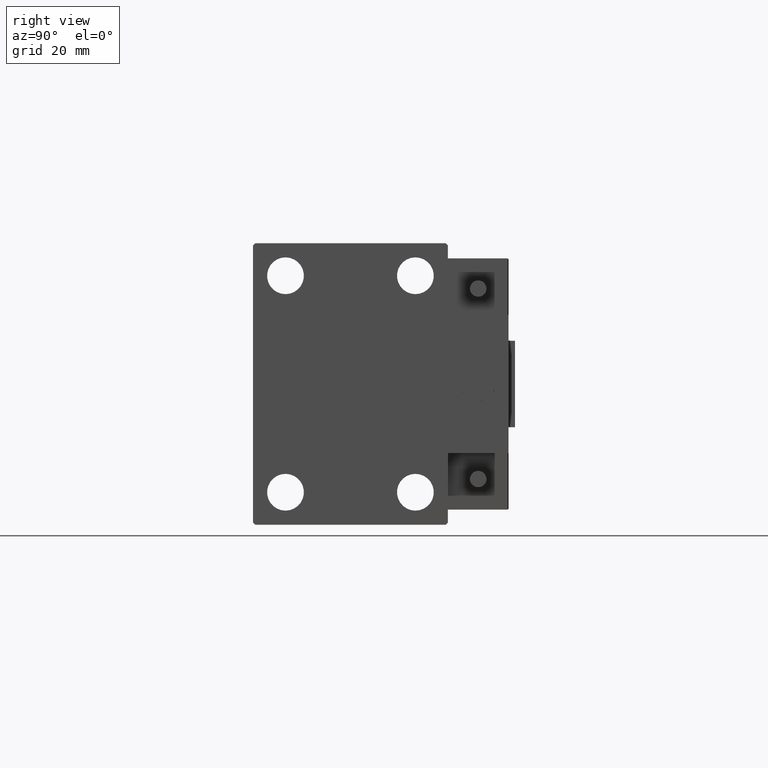
[diagram: clean part render]
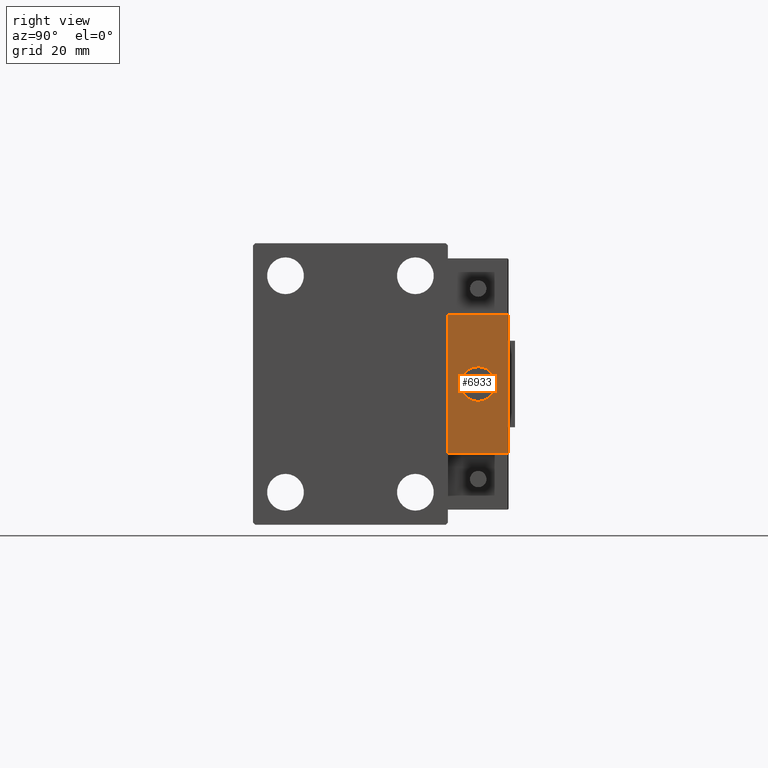
[diagram: same view with one face highlighted and labeled with its STEP entity id]
A machine part, right view. The second image highlights one B-rep face of the part: STEP entity #6933.
In plain terms, the highlighted planar face has unit normal (-1, 0, 0).
Its self-contained STEP definition (entity closure, byte-faithful):
#362 = AXIS2_PLACEMENT_3D ( 'NONE', #14902, #7772, #23529 ) ;
#550 = LINE ( 'NONE', #16073, #34239 ) ;
#6840 = EDGE_CURVE ( 'NONE', #27291, #25643, #18722, .T. ) ;
#6933 = ADVANCED_FACE ( 'NONE', ( #38040, #8018 ), #38540, .F. ) ;
#7772 = DIRECTION ( 'NONE',  ( -1.000000000000000000, 0.000000000000000000, -0.000000000000000000 ) ) ;
#7921 = EDGE_CURVE ( 'NONE', #34886, #28182, #22332, .T. ) ;
#8018 = FACE_OUTER_BOUND ( 'NONE', #43819, .T. ) ;
#8829 = EDGE_CURVE ( 'NONE', #19901, #25643, #36036, .T. ) ;
#9568 = CARTESIAN_POINT ( 'NONE',  ( 10.00000000000000000, 4.898587196589412829E-16, -4.000000000000000000 ) ) ;
#10979 = VECTOR ( 'NONE', #43187, 1000.000000000000000 ) ;
#11830 = CARTESIAN_POINT ( 'NONE',  ( 10.00000000000000000, -7.000000000000000000, 15.99999999999999289 ) ) ;
#14902 = CARTESIAN_POINT ( 'NONE',  ( 10.00000000000000000, 0.000000000000000000, 0.000000000000000000 ) ) ;
#14910 = CARTESIAN_POINT ( 'NONE',  ( 10.00000000000000000, 0.000000000000000000, 0.000000000000000000 ) ) ;
#15174 = DIRECTION ( 'NONE',  ( -1.000000000000000000, 0.000000000000000000, 0.000000000000000000 ) ) ;
#16073 = CARTESIAN_POINT ( 'NONE',  ( 10.00000000000000000, 7.000000000000000000, 15.99999999999999289 ) ) ;
#18722 = LINE ( 'NONE', #11830, #30424 ) ;
#19901 = VERTEX_POINT ( 'NONE', #37969 ) ;
#20380 = DIRECTION ( 'NONE',  ( 0.000000000000000000, -1.000000000000000000, 0.000000000000000000 ) ) ;
#21179 = CARTESIAN_POINT ( 'NONE',  ( 10.00000000000000000, -7.000000000000000000, -16.00000000000000711 ) ) ;
#22332 = CIRCLE ( 'NONE', #28841, 4.000000000000000000 ) ;
#22575 = ORIENTED_EDGE ( 'NONE', *, *, #25665, .F. ) ;
#22891 = CARTESIAN_POINT ( 'NONE',  ( 10.00000000000000000, 0.000000000000000000, 0.000000000000000000 ) ) ;
#23529 = DIRECTION ( 'NONE',  ( -0.000000000000000000, 0.000000000000000000, 1.000000000000000000 ) ) ;
#25272 = EDGE_LOOP ( 'NONE', ( #48126, #46957 ) ) ;
#25643 = VERTEX_POINT ( 'NONE', #21179 ) ;
#25665 = EDGE_CURVE ( 'NONE', #41180, #19901, #31893, .T. ) ;
#26962 = DIRECTION ( 'NONE',  ( -1.000000000000000000, 0.000000000000000000, 0.000000000000000000 ) ) ;
#27291 = VERTEX_POINT ( 'NONE', #41770 ) ;
#27349 = DIRECTION ( 'NONE',  ( 0.000000000000000000, 0.000000000000000000, -1.000000000000000000 ) ) ;
#27493 = EDGE_CURVE ( 'NONE', #41180, #27291, #550, .T. ) ;
#27666 = CARTESIAN_POINT ( 'NONE',  ( 10.00000000000000000, 7.000000000000000000, -16.00000000000000711 ) ) ;
#28182 = VERTEX_POINT ( 'NONE', #9568 ) ;
#28841 = AXIS2_PLACEMENT_3D ( 'NONE', #14910, #15174, #43132 ) ;
#30424 = VECTOR ( 'NONE', #27349, 1000.000000000000000 ) ;
#30544 = DIRECTION ( 'NONE',  ( 0.000000000000000000, 0.000000000000000000, 1.000000000000000000 ) ) ;
#31893 = LINE ( 'NONE', #40522, #39061 ) ;
#34239 = VECTOR ( 'NONE', #20380, 1000.000000000000000 ) ;
#34886 = VERTEX_POINT ( 'NONE', #46852 ) ;
#36036 = LINE ( 'NONE', #27666, #10979 ) ;
#37101 = ORIENTED_EDGE ( 'NONE', *, *, #27493, .T. ) ;
#37969 = CARTESIAN_POINT ( 'NONE',  ( 10.00000000000000000, 7.000000000000000000, -16.00000000000000711 ) ) ;
#38040 = FACE_BOUND ( 'NONE', #25272, .T. ) ;
#38540 = PLANE ( 'NONE',  #362 ) ;
#38943 = AXIS2_PLACEMENT_3D ( 'NONE', #22891, #26962, #30544 ) ;
#39061 = VECTOR ( 'NONE', #43620, 1000.000000000000000 ) ;
#40522 = CARTESIAN_POINT ( 'NONE',  ( 10.00000000000000000, 7.000000000000000000, 15.99999999999999289 ) ) ;
#41180 = VERTEX_POINT ( 'NONE', #48347 ) ;
#41770 = CARTESIAN_POINT ( 'NONE',  ( 10.00000000000000000, -7.000000000000000000, 15.99999999999999289 ) ) ;
#42994 = CIRCLE ( 'NONE', #38943, 4.000000000000000000 ) ;
#43132 = DIRECTION ( 'NONE',  ( 0.000000000000000000, 0.000000000000000000, 1.000000000000000000 ) ) ;
#43187 = DIRECTION ( 'NONE',  ( 0.000000000000000000, -1.000000000000000000, 0.000000000000000000 ) ) ;
#43620 = DIRECTION ( 'NONE',  ( 0.000000000000000000, 0.000000000000000000, -1.000000000000000000 ) ) ;
#43819 = EDGE_LOOP ( 'NONE', ( #45811, #45698, #22575, #37101 ) ) ;
#45698 = ORIENTED_EDGE ( 'NONE', *, *, #8829, .F. ) ;
#45811 = ORIENTED_EDGE ( 'NONE', *, *, #6840, .T. ) ;
#46852 = CARTESIAN_POINT ( 'NONE',  ( 10.00000000000000000, 0.000000000000000000, 4.000000000000000000 ) ) ;
#46957 = ORIENTED_EDGE ( 'NONE', *, *, #49579, .T. ) ;
#48126 = ORIENTED_EDGE ( 'NONE', *, *, #7921, .T. ) ;
#48347 = CARTESIAN_POINT ( 'NONE',  ( 10.00000000000000000, 7.000000000000000000, 15.99999999999999289 ) ) ;
#49579 = EDGE_CURVE ( 'NONE', #28182, #34886, #42994, .T. ) ;